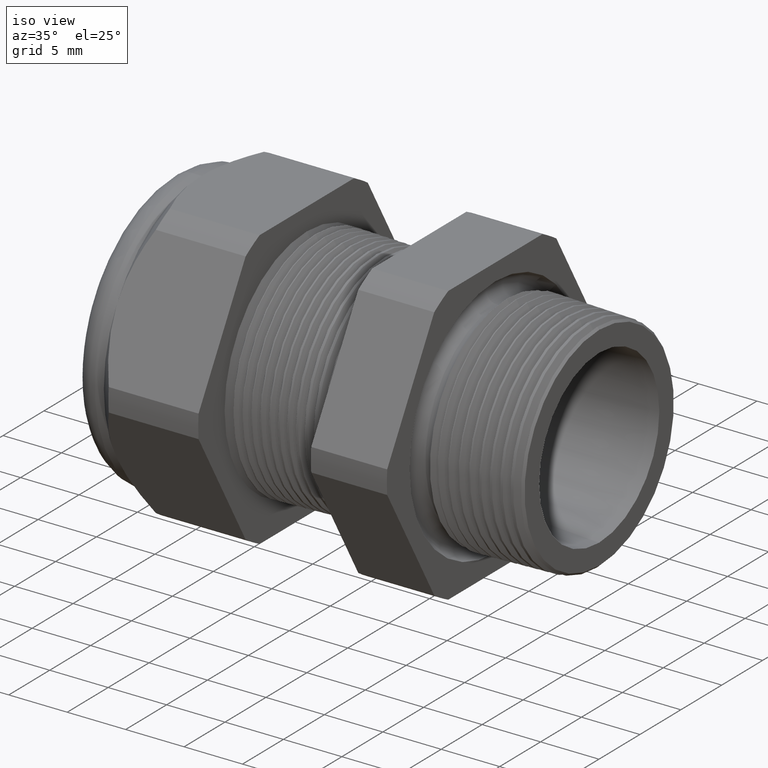
[diagram: clean part render]
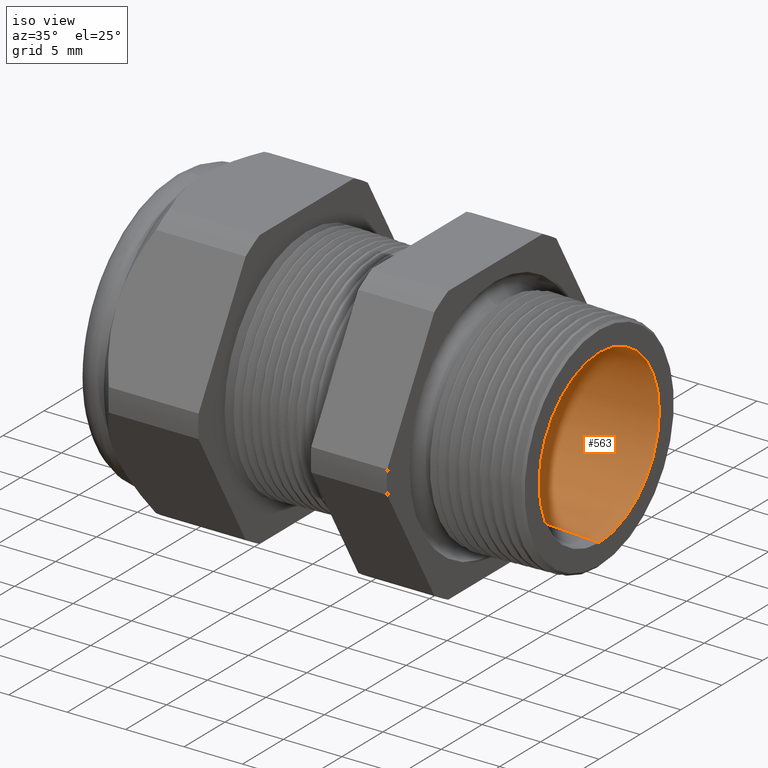
[diagram: same view with one face highlighted and labeled with its STEP entity id]
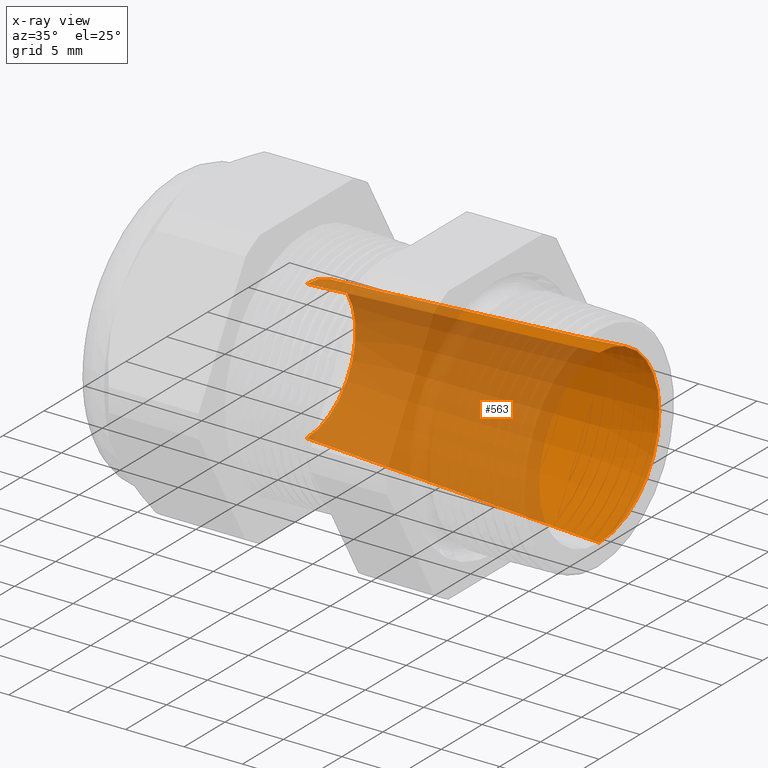
[diagram: x-ray of the same camera — body ghosted, the highlighted face saturated]
A machine part, iso view. The second image highlights one B-rep face of the part: STEP entity #563.
The next image is the same camera in x-ray: the body ghosted, the highlighted face saturated — about 67% of this face is hidden behind the body in this view.
In plain terms, the highlighted conical surface has half-angle 3.148 deg.
Its self-contained STEP definition (entity closure, byte-faithful):
#120 = VERTEX_POINT ( 'NONE', #1943 ) ;
#127 = EDGE_CURVE ( 'NONE', #146, #128, #1936, .T. ) ;
#128 = VERTEX_POINT ( 'NONE', #1928 ) ;
#131 = VERTEX_POINT ( 'NONE', #1927 ) ;
#133 = EDGE_CURVE ( 'NONE', #120, #131, #1983, .T. ) ;
#146 = VERTEX_POINT ( 'NONE', #2014 ) ;
#563 = ADVANCED_FACE ( 'NONE', ( #2832 ), #2831, .F. ) ;
#564 = EDGE_LOOP ( 'NONE', ( #565, #566, #568, #569 ) ) ;
#565 = ORIENTED_EDGE ( 'NONE', *, *, #127, .F. ) ;
#566 = ORIENTED_EDGE ( 'NONE', *, *, #567, .F. ) ;
#567 = EDGE_CURVE ( 'NONE', #120, #146, #2826, .T. ) ;
#568 = ORIENTED_EDGE ( 'NONE', *, *, #133, .T. ) ;
#569 = ORIENTED_EDGE ( 'NONE', *, *, #585, .T. ) ;
#585 = EDGE_CURVE ( 'NONE', #131, #128, #2859, .T. ) ;
#1927 = CARTESIAN_POINT ( 'NONE',  ( 0.03999999999999998000, 0.0000000000000000000, -0.2891955268946231900 ) ) ;
#1928 = CARTESIAN_POINT ( 'NONE',  ( 0.03999999999999998000, 3.541623763392326200E-017, 0.2891955268946231900 ) ) ;
#1929 = DIRECTION ( 'NONE',  ( 0.9984911057575849300, 6.724985655221751600E-018, 0.05491367519111591700 ) ) ;
#1930 = VECTOR ( 'NONE', #1929, 39.37007874015748100 ) ;
#1931 = CARTESIAN_POINT ( 'NONE',  ( -0.9454330708661420300, 2.877919977996280400E-017, 0.2350000000000000100 ) ) ;
#1936 = LINE ( 'NONE', #1931, #1930 ) ;
#1943 = CARTESIAN_POINT ( 'NONE',  ( -0.9454330708661420300, 0.0000000000000000000, -0.2350000000000000100 ) ) ;
#1980 = DIRECTION ( 'NONE',  ( 0.9984911057575849300, 0.0000000000000000000, -0.05491367519111591700 ) ) ;
#1981 = VECTOR ( 'NONE', #1980, 39.37007874015748100 ) ;
#1982 = CARTESIAN_POINT ( 'NONE',  ( -0.9454330708661420300, 0.0000000000000000000, -0.2350000000000000100 ) ) ;
#1983 = LINE ( 'NONE', #1982, #1981 ) ;
#2014 = CARTESIAN_POINT ( 'NONE',  ( -0.9454330708661420300, 3.209771870694303300E-017, 0.2350000000000000100 ) ) ;
#2823 = DIRECTION ( 'NONE',  ( 0.0000000000000000000, 0.0000000000000000000, -1.000000000000000000 ) ) ;
#2824 = DIRECTION ( 'NONE',  ( 1.000000000000000000, 0.0000000000000000000, 0.0000000000000000000 ) ) ;
#2825 = AXIS2_PLACEMENT_3D ( 'NONE', #2830, #2824, #2823 ) ;
#2826 = CIRCLE ( 'NONE', #2825, 0.2350000000000000100 ) ;
#2827 = DIRECTION ( 'NONE',  ( 0.0000000000000000000, 0.0000000000000000000, -1.000000000000000000 ) ) ;
#2828 = DIRECTION ( 'NONE',  ( 1.000000000000000000, 0.0000000000000000000, 0.0000000000000000000 ) ) ;
#2829 = AXIS2_PLACEMENT_3D ( 'NONE', #2837, #2828, #2827 ) ;
#2830 = CARTESIAN_POINT ( 'NONE',  ( -0.9454330708661420300, 0.0000000000000000000, 0.0000000000000000000 ) ) ;
#2831 = CONICAL_SURFACE ( 'NONE', #2829, 0.2350000000000000100, 0.05494131151472637900 ) ;
#2832 = FACE_OUTER_BOUND ( 'NONE', #564, .T. ) ;
#2837 = CARTESIAN_POINT ( 'NONE',  ( -0.9454330708661420300, 0.0000000000000000000, 0.0000000000000000000 ) ) ;
#2855 = DIRECTION ( 'NONE',  ( 0.0000000000000000000, 0.0000000000000000000, -1.000000000000000000 ) ) ;
#2856 = DIRECTION ( 'NONE',  ( 1.000000000000000000, 0.0000000000000000000, 0.0000000000000000000 ) ) ;
#2857 = CARTESIAN_POINT ( 'NONE',  ( 0.03999999999999998000, 0.0000000000000000000, 0.0000000000000000000 ) ) ;
#2858 = AXIS2_PLACEMENT_3D ( 'NONE', #2857, #2856, #2855 ) ;
#2859 = CIRCLE ( 'NONE', #2858, 0.2891955268946231900 ) ;